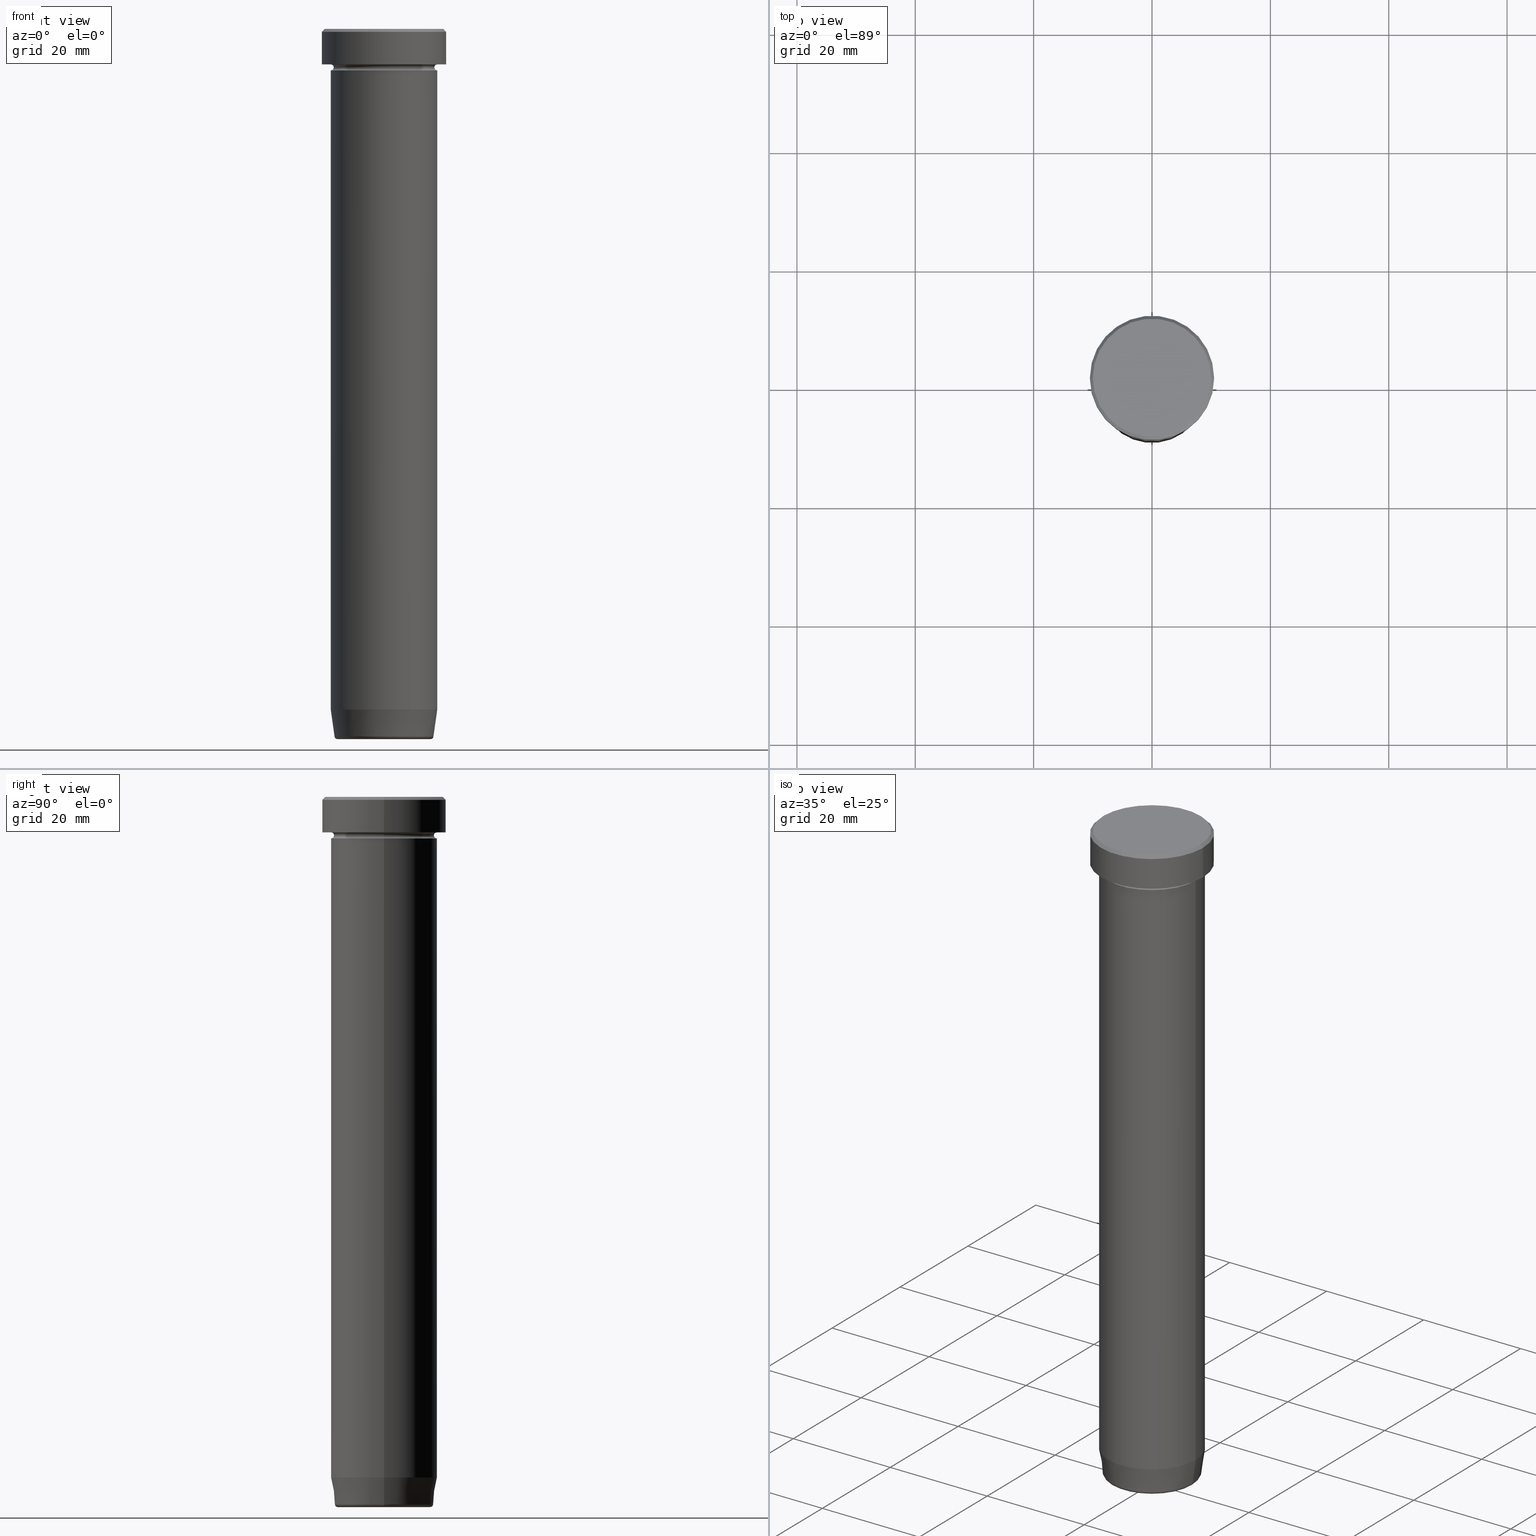
[diagram: canonical four-view strip — front | top / right | iso, engineering-drawing reading convention]
A machine part, canonical four-view strip (front | top / right | iso — engineering-drawing reading convention). The complete STEP part file that produces these views, byte-faithful:
ISO-10303-21;
HEADER;
FILE_DESCRIPTION (( 'STEP AP203' ),
    '1' );
FILE_NAME ('03d7.STEP',
    '2024-01-02T19:33:38',
    ( '' ),
    ( '' ),
    'SwSTEP 2.0',
    'SolidWorks 2019',
    '' );
FILE_SCHEMA (( 'CONFIG_CONTROL_DESIGN' ));
ENDSEC;

DATA;
#1 = VERTEX_POINT ( 'NONE', #71 ) ;
#2 = DIRECTION ( 'NONE',  ( 1.000000000000000000, 0.000000000000000000, 0.000000000000000000 ) ) ;
#3 = ORIENTED_EDGE ( 'NONE', *, *, #248, .T. ) ;
#4 = PLANE ( 'NONE',  #290 ) ;
#5 = EDGE_CURVE ( 'NONE', #406, #433, #534, .T. ) ;
#6 = ORIENTED_EDGE ( 'NONE', *, *, #166, .F. ) ;
#7 = EDGE_CURVE ( 'NONE', #471, #170, #351, .T. ) ;
#8 = CARTESIAN_POINT ( 'NONE',  ( 0.000000000000000000, 0.000000000000000000, -6.000000000000000000 ) ) ;
#9 = ORIENTED_EDGE ( 'NONE', *, *, #341, .F. ) ;
#10 = DIRECTION ( 'NONE',  ( -0.000000000000000000, -0.000000000000000000, 1.000000000000000000 ) ) ;
#11 = ORIENTED_EDGE ( 'NONE', *, *, #382, .T. ) ;
#12 = PRODUCT_DEFINITION ( 'NEZN�M�', '', #520, #102 ) ;
#13 = CARTESIAN_POINT ( 'NONE',  ( 8.357786491950712104, 0.000000000000000000, -119.5695865504800253 ) ) ;
#14 = VECTOR ( 'NONE', #261, 1000.000000000000000 ) ;
#15 = SECURITY_CLASSIFICATION ( '', '', #133 ) ;
#16 = DIRECTION ( 'NONE',  ( -0.000000000000000000, -0.000000000000000000, 1.000000000000000000 ) ) ;
#17 = EDGE_LOOP ( 'NONE', ( #6, #9, #507, #174 ) ) ;
#18 = ADVANCED_FACE ( 'NONE', ( #535 ), #577, .F. ) ;
#19 = CARTESIAN_POINT ( 'NONE',  ( 0.000000000000000000, 0.000000000000000000, 0.000000000000000000 ) ) ;
#20 = DIRECTION ( 'NONE',  ( 1.000000000000000000, 0.000000000000000000, 0.000000000000000000 ) ) ;
#21 = ORIENTED_EDGE ( 'NONE', *, *, #569, .T. ) ;
#22 = CIRCLE ( 'NONE', #72, 9.000000000000000000 ) ;
#23 = DIRECTION ( 'NONE',  ( -0.000000000000000000, -0.000000000000000000, 1.000000000000000000 ) ) ;
#24 = CARTESIAN_POINT ( 'NONE',  ( 0.000000000000000000, 4.898587196589411448E-15, -120.0000000000000000 ) ) ;
#25 = CONICAL_SURFACE ( 'NONE', #443, 8.297295826488038983, 0.1396263401595468356 ) ;
#26 = VECTOR ( 'NONE', #388, 1000.000000000000000 ) ;
#27 = FACE_OUTER_BOUND ( 'NONE', #346, .T. ) ;
#28 = FACE_OUTER_BOUND ( 'NONE', #241, .T. ) ;
#29 = ORIENTED_EDGE ( 'NONE', *, *, #62, .T. ) ;
#30 = EDGE_LOOP ( 'NONE', ( #281, #197, #379, #466 ) ) ;
#31 = DIRECTION ( 'NONE',  ( 0.000000000000000000, 0.000000000000000000, -1.000000000000000000 ) ) ;
#32 = CIRCLE ( 'NONE', #424, 10.50000000000000000 ) ;
#33 = DIRECTION ( 'NONE',  ( -1.000000000000000000, 0.000000000000000000, -0.000000000000000000 ) ) ;
#34 = ORIENTED_EDGE ( 'NONE', *, *, #296, .T. ) ;
#35 = PERSON_AND_ORGANIZATION ( #115, #362 ) ;
#36 = AXIS2_PLACEMENT_3D ( 'NONE', #506, #418, #189 ) ;
#37 = LINE ( 'NONE', #518, #575 ) ;
#38 = COORDINATED_UNIVERSAL_TIME_OFFSET ( 1, 0, .AHEAD. ) ;
#39 = EDGE_CURVE ( 'NONE', #170, #570, #22, .T. ) ;
#40 = CARTESIAN_POINT ( 'NONE',  ( 7.862652457579924814, 0.000000000000000000, -120.0000000000000000 ) ) ;
#41 = MECHANICAL_CONTEXT ( 'NONE', #204, 'mechanical' ) ;
#42 = CARTESIAN_POINT ( 'NONE',  ( 10.00000000000000178, 1.224646799147353454E-15, 0.000000000000000000 ) ) ;
#43 = AXIS2_PLACEMENT_3D ( 'NONE', #24, #306, #119 ) ;
#44 = ADVANCED_FACE ( 'NONE', ( #27 ), #212, .F. ) ;
#45 = SHAPE_DEFINITION_REPRESENTATION ( #514, #163 ) ;
#46 = DIRECTION ( 'NONE',  ( 0.000000000000000000, -0.000000000000000000, 1.000000000000000000 ) ) ;
#47 = VECTOR ( 'NONE', #232, 1000.000000000000000 ) ;
#48 = ORIENTED_EDGE ( 'NONE', *, *, #59, .T. ) ;
#49 = CIRCLE ( 'NONE', #194, 0.5000000000000004441 ) ;
#50 = AXIS2_PLACEMENT_3D ( 'NONE', #494, #73, #311 ) ;
#51 = APPLICATION_PROTOCOL_DEFINITION ( 'international standard', 'config_control_design', 1994, #583 ) ;
#52 = CARTESIAN_POINT ( 'NONE',  ( 0.000000000000000000, 0.000000000000000000, -6.000000000000000000 ) ) ;
#53 = EDGE_LOOP ( 'NONE', ( #553, #3, #571, #244 ) ) ;
#54 = EDGE_CURVE ( 'NONE', #391, #493, #271, .T. ) ;
#55 = DIRECTION ( 'NONE',  ( -0.1391731009600659097, 1.704378926181561528E-17, 0.9902680687415702510 ) ) ;
#56 = EDGE_CURVE ( 'NONE', #336, #117, #84, .T. ) ;
#57 = DIRECTION ( 'NONE',  ( 1.000000000000000000, 0.000000000000000000, 0.000000000000000000 ) ) ;
#58 = CIRCLE ( 'NONE', #36, 9.000000000000000000 ) ;
#59 = EDGE_CURVE ( 'NONE', #516, #179, #65, .T. ) ;
#60 = DIRECTION ( 'NONE',  ( 1.000000000000000000, 0.000000000000000000, 0.000000000000000000 ) ) ;
#61 = VERTEX_POINT ( 'NONE', #489 ) ;
#62 = EDGE_CURVE ( 'NONE', #61, #127, #32, .T. ) ;
#63 = DIRECTION ( 'NONE',  ( 1.000000000000000000, 0.000000000000000000, 0.000000000000000000 ) ) ;
#64 = ORIENTED_EDGE ( 'NONE', *, *, #378, .T. ) ;
#65 = CIRCLE ( 'NONE', #405, 7.862652457579924814 ) ;
#66 = CARTESIAN_POINT ( 'NONE',  ( -10.00000000000000178, 0.000000000000000000, 0.000000000000000000 ) ) ;
#67 = TOROIDAL_SURFACE ( 'NONE', #229, 9.000000000000000000, 0.5000000000000000000 ) ;
#68 = ORIENTED_EDGE ( 'NONE', *, *, #451, .F. ) ;
#69 = DIRECTION ( 'NONE',  ( -0.000000000000000000, -0.000000000000000000, 1.000000000000000000 ) ) ;
#70 =( LENGTH_UNIT ( ) NAMED_UNIT ( * ) SI_UNIT ( .MILLI., .METRE. ) );
#71 = CARTESIAN_POINT ( 'NONE',  ( -9.000000000000000000, 1.102182119232617714E-15, -114.9999999999999858 ) ) ;
#72 = AXIS2_PLACEMENT_3D ( 'NONE', #210, #491, #20 ) ;
#73 = DIRECTION ( 'NONE',  ( -0.000000000000000000, -0.000000000000000000, 1.000000000000000000 ) ) ;
#74 = DIRECTION ( 'NONE',  ( 1.224646799147353207E-16, 1.000000000000000000, 0.000000000000000000 ) ) ;
#75 = AXIS2_PLACEMENT_3D ( 'NONE', #178, #364, #542 ) ;
#76 = CYLINDRICAL_SURFACE ( 'NONE', #176, 9.000000000000000000 ) ;
#77 = APPROVAL_PERSON_ORGANIZATION ( #459, #258, #594 ) ;
#78 = CARTESIAN_POINT ( 'NONE',  ( 10.00000000000000178, 1.255262969126037241E-15, 0.000000000000000000 ) ) ;
#79 = ORIENTED_EDGE ( 'NONE', *, *, #385, .F. ) ;
#80 = CYLINDRICAL_SURFACE ( 'NONE', #372, 10.50000000000000000 ) ;
#81 = DIRECTION ( 'NONE',  ( 1.000000000000000000, 0.000000000000000000, 0.000000000000000000 ) ) ;
#82 = EDGE_CURVE ( 'NONE', #259, #1, #158, .T. ) ;
#83 = ORIENTED_EDGE ( 'NONE', *, *, #569, .F. ) ;
#84 = CIRCLE ( 'NONE', #330, 9.000000000000000000 ) ;
#85 = PLANE ( 'NONE',  #427 ) ;
#86 = APPROVAL_DATE_TIME ( #182, #209 ) ;
#87 = AXIS2_PLACEMENT_3D ( 'NONE', #508, #267, #503 ) ;
#88 = CARTESIAN_POINT ( 'NONE',  ( 0.000000000000000000, 9.000000000000000000, -22.00000000000000000 ) ) ;
#89 = AXIS2_PLACEMENT_3D ( 'NONE', #581, #528, #120 ) ;
#90 = COORDINATED_UNIVERSAL_TIME_OFFSET ( 1, 0, .AHEAD. ) ;
#91 = DIRECTION ( 'NONE',  ( 1.000000000000000000, 0.000000000000000000, 0.000000000000000000 ) ) ;
#92 = PERSON_AND_ORGANIZATION ( #115, #362 ) ;
#93 = DIRECTION ( 'NONE',  ( 1.000000000000000000, 0.000000000000000000, 0.000000000000000000 ) ) ;
#94 = CLOSED_SHELL ( 'NONE', ( #441, #588, #580, #585, #167, #274, #285, #533, #461, #421, #147, #106, #116 ) ) ;
#95 = VERTEX_POINT ( 'NONE', #78 ) ;
#96 = APPLICATION_PROTOCOL_DEFINITION ( 'international standard', 'config_control_design', 1994, #204 ) ;
#97 = AXIS2_PLACEMENT_3D ( 'NONE', #88, #497, #224 ) ;
#98 = VERTEX_POINT ( 'NONE', #407 ) ;
#99 = LOCAL_TIME ( 20, 33, 38.00000000000000000, #266 ) ;
#100 = EDGE_CURVE ( 'NONE', #95, #344, #454, .T. ) ;
#101 = CARTESIAN_POINT ( 'NONE',  ( 0.000000000000000000, 0.000000000000000000, 0.000000000000000000 ) ) ;
#102 = DESIGN_CONTEXT ( 'detailed design', #583, 'design' ) ;
#103 = ORIENTED_EDGE ( 'NONE', *, *, #264, .T. ) ;
#104 = CARTESIAN_POINT ( 'NONE',  ( 0.000000000000000000, 0.000000000000000000, -22.00000000000000000 ) ) ;
#105 = ORIENTED_EDGE ( 'NONE', *, *, #248, .F. ) ;
#106 = ADVANCED_FACE ( 'NONE', ( #394 ), #151, .F. ) ;
#107 = CARTESIAN_POINT ( 'NONE',  ( 9.000000000000000000, 0.000000000000000000, -6.500000000000000888 ) ) ;
#108 = TOROIDAL_SURFACE ( 'NONE', #380, 7.862652457579924814, 0.5000000000000000000 ) ;
#109 = CARTESIAN_POINT ( 'NONE',  ( 0.000000000000000000, 10.50000000000000000, -6.000000000000000000 ) ) ;
#110 = EDGE_LOOP ( 'NONE', ( #522, #294, #150, #469 ) ) ;
#111 = CARTESIAN_POINT ( 'NONE',  ( 8.297295826488038983, 0.000000000000000000, -120.0000000000000000 ) ) ;
#112 = VERTEX_POINT ( 'NONE', #495 ) ;
#113 = FACE_OUTER_BOUND ( 'NONE', #478, .T. ) ;
#114 = ORIENTED_EDGE ( 'NONE', *, *, #554, .T. ) ;
#115 = PERSON ( 'NEUR�EN�', 'NEUR�EN�', 'NEUR�EN�', ('NEUR�EN�'), ('NEUR�EN�'), ('NEUR�EN�') ) ;
#116 = ADVANCED_FACE ( 'NONE', ( #173 ), #492, .T. ) ;
#117 = VERTEX_POINT ( 'NONE', #450 ) ;
#118 = CARTESIAN_POINT ( 'NONE',  ( 10.50000000000000000, 0.000000000000000000, -0.5000000000000023315 ) ) ;
#119 = DIRECTION ( 'NONE',  ( 1.000000000000000000, 0.000000000000000000, 0.000000000000000000 ) ) ;
#120 = DIRECTION ( 'NONE',  ( 1.000000000000000000, 0.000000000000000000, 0.000000000000000000 ) ) ;
#121 = DIRECTION ( 'NONE',  ( -0.000000000000000000, -0.000000000000000000, 1.000000000000000000 ) ) ;
#122 = DIRECTION ( 'NONE',  ( -0.000000000000000000, -0.000000000000000000, 1.000000000000000000 ) ) ;
#123 = CC_DESIGN_APPROVAL ( #258, ( #15 ) ) ;
#124 = FACE_OUTER_BOUND ( 'NONE', #317, .T. ) ;
#125 = AXIS2_PLACEMENT_3D ( 'NONE', #417, #590, #545 ) ;
#126 = DIRECTION ( 'NONE',  ( 0.000000000000000000, 0.000000000000000000, -1.000000000000000000 ) ) ;
#127 = VERTEX_POINT ( 'NONE', #586 ) ;
#128 = APPROVAL_ROLE ( '' ) ;
#129 = DIRECTION ( 'NONE',  ( -1.000000000000000000, 0.000000000000000000, 0.000000000000000000 ) ) ;
#130 = EDGE_LOOP ( 'NONE', ( #363, #452, #190, #142 ) ) ;
#131 = APPROVAL_ROLE ( '' ) ;
#132 = CARTESIAN_POINT ( 'NONE',  ( 9.000000000000000000, 0.000000000000000000, 0.000000000000000000 ) ) ;
#133 = SECURITY_CLASSIFICATION_LEVEL ( 'unclassified' ) ;
#134 = CARTESIAN_POINT ( 'NONE',  ( -7.862652457579924814, 9.628972164983326593E-16, -119.5000000000000000 ) ) ;
#135 = AXIS2_PLACEMENT_3D ( 'NONE', #356, #488, #214 ) ;
#136 = EDGE_CURVE ( 'NONE', #112, #587, #237, .T. ) ;
#137 = DIRECTION ( 'NONE',  ( -0.000000000000000000, -0.000000000000000000, 1.000000000000000000 ) ) ;
#138 = DIRECTION ( 'NONE',  ( 0.000000000000000000, 0.000000000000000000, -1.000000000000000000 ) ) ;
#139 = ORIENTED_EDGE ( 'NONE', *, *, #39, .F. ) ;
#140 = LINE ( 'NONE', #144, #288 ) ;
#141 = CONICAL_SURFACE ( 'NONE', #200, 8.297295826488038983, 0.1396263401595468356 ) ;
#142 = ORIENTED_EDGE ( 'NONE', *, *, #262, .F. ) ;
#143 = VECTOR ( 'NONE', #55, 1000.000000000000000 ) ;
#144 = CARTESIAN_POINT ( 'NONE',  ( 9.000000000000000000, 0.000000000000000000, 0.000000000000000000 ) ) ;
#145 = CARTESIAN_POINT ( 'NONE',  ( -8.499999999999998224, 1.071565949253933927E-15, -6.500000000000000888 ) ) ;
#146 = VERTEX_POINT ( 'NONE', #574 ) ;
#147 = ADVANCED_FACE ( 'NONE', ( #160 ), #67, .F. ) ;
#148 = FACE_OUTER_BOUND ( 'NONE', #410, .T. ) ;
#149 = MANIFOLD_SOLID_BREP ( 'Zaoblit4', #368 ) ;
#150 = ORIENTED_EDGE ( 'NONE', *, *, #82, .F. ) ;
#151 = TOROIDAL_SURFACE ( 'NONE', #161, 9.000000000000000000, 0.5000000000000000000 ) ;
#152 = LOCAL_TIME ( 20, 33, 38.00000000000000000, #90 ) ;
#153 = CARTESIAN_POINT ( 'NONE',  ( 0.000000000000000000, 0.000000000000000000, 0.000000000000000000 ) ) ;
#154 = ORIENTED_EDGE ( 'NONE', *, *, #39, .T. ) ;
#155 = CC_DESIGN_PERSON_AND_ORGANIZATION_ASSIGNMENT ( #498, #369, ( #520 ) ) ;
#156 = FACE_OUTER_BOUND ( 'NONE', #389, .T. ) ;
#157 = ORIENTED_EDGE ( 'NONE', *, *, #226, .T. ) ;
#158 = CIRCLE ( 'NONE', #318, 9.000000000000000000 ) ;
#159 = CYLINDRICAL_SURFACE ( 'NONE', #310, 9.000000000000000000 ) ;
#160 = FACE_OUTER_BOUND ( 'NONE', #30, .T. ) ;
#161 = AXIS2_PLACEMENT_3D ( 'NONE', #247, #360, #538 ) ;
#162 = CIRCLE ( 'NONE', #501, 8.499999999999998224 ) ;
#163 = ADVANCED_BREP_SHAPE_REPRESENTATION ( '03d7', ( #565, #149, #125 ), #238 ) ;
#164 = DIRECTION ( 'NONE',  ( 1.000000000000000000, 0.000000000000000000, 0.000000000000000000 ) ) ;
#165 = DIRECTION ( 'NONE',  ( -0.000000000000000000, -0.000000000000000000, 1.000000000000000000 ) ) ;
#166 = EDGE_CURVE ( 'NONE', #95, #587, #456, .T. ) ;
#167 = ADVANCED_FACE ( 'NONE', ( #546 ), #373, .T. ) ;
#168 = DIRECTION ( 'NONE',  ( 1.000000000000000000, 0.000000000000000000, 0.000000000000000000 ) ) ;
#169 = CARTESIAN_POINT ( 'NONE',  ( 0.000000000000000000, 0.000000000000000000, -120.0000000000000000 ) ) ;
#170 = VERTEX_POINT ( 'NONE', #320 ) ;
#171 = CARTESIAN_POINT ( 'NONE',  ( 0.000000000000000000, 0.000000000000000000, 0.000000000000000000 ) ) ;
#172 = EDGE_CURVE ( 'NONE', #98, #146, #300, .T. ) ;
#173 = FACE_OUTER_BOUND ( 'NONE', #17, .T. ) ;
#174 = ORIENTED_EDGE ( 'NONE', *, *, #573, .F. ) ;
#175 = CIRCLE ( 'NONE', #185, 10.00000000000000178 ) ;
#176 = AXIS2_PLACEMENT_3D ( 'NONE', #171, #525, #255 ) ;
#177 = CALENDAR_DATE ( 2024, 2, 1 ) ;
#178 = CARTESIAN_POINT ( 'NONE',  ( 0.000000000000000000, 0.000000000000000000, -0.5000000000000023315 ) ) ;
#179 = VERTEX_POINT ( 'NONE', #40 ) ;
#180 = CALENDAR_DATE ( 2024, 2, 1 ) ;
#181 = DIRECTION ( 'NONE',  ( -1.000000000000000000, 0.000000000000000000, 0.000000000000000000 ) ) ;
#182 = DATE_AND_TIME ( #464, #455 ) ;
#183 = DIRECTION ( 'NONE',  ( -0.000000000000000000, -0.000000000000000000, 1.000000000000000000 ) ) ;
#184 = APPROVAL_DATE_TIME ( #268, #258 ) ;
#185 = AXIS2_PLACEMENT_3D ( 'NONE', #153, #384, #57 ) ;
#186 = DIRECTION ( 'NONE',  ( 1.000000000000000000, 0.000000000000000000, 0.000000000000000000 ) ) ;
#187 = LOCAL_TIME ( 20, 33, 38.00000000000000000, #319 ) ;
#188 = CALENDAR_DATE ( 2024, 2, 1 ) ;
#189 = DIRECTION ( 'NONE',  ( -1.000000000000000000, 0.000000000000000000, 0.000000000000000000 ) ) ;
#190 = ORIENTED_EDGE ( 'NONE', *, *, #328, .T. ) ;
#191 = DIRECTION ( 'NONE',  ( 0.7071067811865450192, 8.659560562354902043E-17, -0.7071067811865500152 ) ) ;
#192 = ORIENTED_EDGE ( 'NONE', *, *, #437, .F. ) ;
#193 = CARTESIAN_POINT ( 'NONE',  ( -9.000000000000000000, 1.102182119232617714E-15, -22.00000000000000000 ) ) ;
#194 = AXIS2_PLACEMENT_3D ( 'NONE', #269, #460, #138 ) ;
#195 = APPROVAL_PERSON_ORGANIZATION ( #92, #209, #131 ) ;
#196 = DIRECTION ( 'NONE',  ( -0.000000000000000000, -0.000000000000000000, 1.000000000000000000 ) ) ;
#197 = ORIENTED_EDGE ( 'NONE', *, *, #517, .F. ) ;
#198 = CARTESIAN_POINT ( 'NONE',  ( 9.000000000000000000, 0.000000000000000000, -22.00000000000000000 ) ) ;
#199 = FACE_OUTER_BOUND ( 'NONE', #205, .T. ) ;
#200 = AXIS2_PLACEMENT_3D ( 'NONE', #326, #591, #91 ) ;
#201 = AXIS2_PLACEMENT_3D ( 'NONE', #483, #208, #349 ) ;
#202 = CC_DESIGN_DATE_AND_TIME_ASSIGNMENT ( #457, #223, ( #15 ) ) ;
#203 = DIRECTION ( 'NONE',  ( 0.000000000000000000, 0.000000000000000000, -1.000000000000000000 ) ) ;
#204 = APPLICATION_CONTEXT ( 'configuration controlled 3d designs of mechanical parts and assemblies' ) ;
#205 = EDGE_LOOP ( 'NONE', ( #348, #556 ) ) ;
#206 = CARTESIAN_POINT ( 'NONE',  ( 0.000000000000000000, 0.000000000000000000, 0.000000000000000000 ) ) ;
#207 = CARTESIAN_POINT ( 'NONE',  ( 0.000000000000000000, 0.000000000000000000, -6.000000000000000000 ) ) ;
#208 = DIRECTION ( 'NONE',  ( 0.000000000000000000, 0.000000000000000000, -1.000000000000000000 ) ) ;
#209 = APPROVAL ( #275, 'NEUR�EN�' ) ;
#210 = CARTESIAN_POINT ( 'NONE',  ( 0.000000000000000000, 0.000000000000000000, -7.000000000000000000 ) ) ;
#211 = TOROIDAL_SURFACE ( 'NONE', #50, 9.000000000000000000, 0.5000000000000000000 ) ;
#212 = PLANE ( 'NONE',  #242 ) ;
#213 = VERTEX_POINT ( 'NONE', #370 ) ;
#214 = DIRECTION ( 'NONE',  ( 0.000000000000000000, 0.000000000000000000, -1.000000000000000000 ) ) ;
#215 = DIRECTION ( 'NONE',  ( -1.000000000000000000, 1.224646799147353454E-16, 0.000000000000000000 ) ) ;
#216 = EDGE_CURVE ( 'NONE', #433, #406, #482, .T. ) ;
#217 = EDGE_LOOP ( 'NONE', ( #29, #350, #219, #332 ) ) ;
#218 = DIRECTION ( 'NONE',  ( -0.000000000000000000, -0.000000000000000000, 1.000000000000000000 ) ) ;
#219 = ORIENTED_EDGE ( 'NONE', *, *, #136, .T. ) ;
#220 = AXIS2_PLACEMENT_3D ( 'NONE', #298, #23, #352 ) ;
#221 = PERSON_AND_ORGANIZATION_ROLE ( 'creator' ) ;
#222 = PLANE ( 'NONE',  #97 ) ;
#223 = DATE_TIME_ROLE ( 'classification_date' ) ;
#224 = DIRECTION ( 'NONE',  ( -1.000000000000000000, 0.000000000000000000, -0.000000000000000000 ) ) ;
#225 = CARTESIAN_POINT ( 'NONE',  ( 9.000000000000000000, 0.000000000000000000, -114.9999999999999858 ) ) ;
#226 = EDGE_CURVE ( 'NONE', #179, #433, #49, .T. ) ;
#227 = EDGE_CURVE ( 'NONE', #391, #570, #367, .T. ) ;
#228 = PERSON_AND_ORGANIZATION_ROLE ( 'creator' ) ;
#229 = AXIS2_PLACEMENT_3D ( 'NONE', #550, #377, #458 ) ;
#230 = LINE ( 'NONE', #499, #14 ) ;
#231 = ORIENTED_EDGE ( 'NONE', *, *, #385, .T. ) ;
#232 = DIRECTION ( 'NONE',  ( -0.000000000000000000, -0.000000000000000000, 1.000000000000000000 ) ) ;
#233 = ORIENTED_EDGE ( 'NONE', *, *, #227, .T. ) ;
#234 = FACE_BOUND ( 'NONE', #524, .T. ) ;
#235 = EDGE_LOOP ( 'NONE', ( #540, #11, #474, #544 ) ) ;
#236 = CARTESIAN_POINT ( 'NONE',  ( -8.297295826488038983, 1.016125677548726948E-15, -120.0000000000000000 ) ) ;
#237 = CIRCLE ( 'NONE', #75, 10.50000000000000000 ) ;
#238 =( GEOMETRIC_REPRESENTATION_CONTEXT ( 3 ) GLOBAL_UNCERTAINTY_ASSIGNED_CONTEXT ( ( #335 ) ) GLOBAL_UNIT_ASSIGNED_CONTEXT ( ( #70, #439, #536 ) ) REPRESENTATION_CONTEXT ( 'NONE', 'WORKASPACE' ) );
#239 = LINE ( 'NONE', #111, #361 ) ;
#240 = DIRECTION ( 'NONE',  ( 1.000000000000000000, 0.000000000000000000, 0.000000000000000000 ) ) ;
#241 = EDGE_LOOP ( 'NONE', ( #21, #559, #68, #273 ) ) ;
#242 = AXIS2_PLACEMENT_3D ( 'NONE', #251, #397, #33 ) ;
#243 = DIRECTION ( 'NONE',  ( -0.000000000000000000, -0.000000000000000000, 1.000000000000000000 ) ) ;
#244 = ORIENTED_EDGE ( 'NONE', *, *, #226, .F. ) ;
#245 = ORIENTED_EDGE ( 'NONE', *, *, #451, .T. ) ;
#246 = FACE_OUTER_BOUND ( 'NONE', #235, .T. ) ;
#247 = CARTESIAN_POINT ( 'NONE',  ( 0.000000000000000000, 0.000000000000000000, -6.500000000000000888 ) ) ;
#248 = EDGE_CURVE ( 'NONE', #516, #406, #276, .T. ) ;
#249 = CARTESIAN_POINT ( 'NONE',  ( 9.000000000000000000, 0.000000000000000000, -7.000000000000000000 ) ) ;
#250 = ORIENTED_EDGE ( 'NONE', *, *, #296, .F. ) ;
#251 = CARTESIAN_POINT ( 'NONE',  ( 0.000000000000000000, 0.000000000000000000, -22.00000000000000000 ) ) ;
#252 = EDGE_CURVE ( 'NONE', #127, #112, #230, .T. ) ;
#253 = VECTOR ( 'NONE', #243, 1000.000000000000000 ) ;
#254 = CC_DESIGN_APPROVAL ( #209, ( #520 ) ) ;
#255 = DIRECTION ( 'NONE',  ( 1.000000000000000000, 0.000000000000000000, 0.000000000000000000 ) ) ;
#256 = DIRECTION ( 'NONE',  ( -0.000000000000000000, -0.000000000000000000, 1.000000000000000000 ) ) ;
#257 = DIRECTION ( 'NONE',  ( -1.000000000000000000, 0.000000000000000000, 0.000000000000000000 ) ) ;
#258 = APPROVAL ( #547, 'NEUR�EN�' ) ;
#259 = VERTEX_POINT ( 'NONE', #225 ) ;
#260 = PERSON_AND_ORGANIZATION_ROLE ( 'design_owner' ) ;
#261 = DIRECTION ( 'NONE',  ( -0.000000000000000000, -0.000000000000000000, 1.000000000000000000 ) ) ;
#262 = EDGE_CURVE ( 'NONE', #1, #259, #398, .T. ) ;
#263 = CIRCLE ( 'NONE', #408, 10.50000000000000000 ) ;
#264 = EDGE_CURVE ( 'NONE', #127, #61, #263, .T. ) ;
#265 = CC_DESIGN_APPROVAL ( #513, ( #12 ) ) ;
#266 = COORDINATED_UNIVERSAL_TIME_OFFSET ( 1, 0, .AHEAD. ) ;
#267 = DIRECTION ( 'NONE',  ( -0.000000000000000000, -0.000000000000000000, 1.000000000000000000 ) ) ;
#268 = DATE_AND_TIME ( #188, #152 ) ;
#269 = CARTESIAN_POINT ( 'NONE',  ( 7.862652457579924814, 0.000000000000000000, -119.5000000000000000 ) ) ;
#270 = COORDINATED_UNIVERSAL_TIME_OFFSET ( 1, 0, .AHEAD. ) ;
#271 = CIRCLE ( 'NONE', #295, 9.000000000000000000 ) ;
#272 = DIRECTION ( 'NONE',  ( -1.224646799147353207E-16, 1.000000000000000000, 0.000000000000000000 ) ) ;
#273 = ORIENTED_EDGE ( 'NONE', *, *, #554, .F. ) ;
#274 = ADVANCED_FACE ( 'NONE', ( #453 ), #222, .T. ) ;
#275 = APPROVAL_STATUS ( 'not_yet_approved' ) ;
#276 = CIRCLE ( 'NONE', #387, 0.5000000000000004441 ) ;
#277 = TOROIDAL_SURFACE ( 'NONE', #510, 9.000000000000000000, 0.5000000000000000000 ) ;
#278 = DIRECTION ( 'NONE',  ( -0.000000000000000000, -0.000000000000000000, 1.000000000000000000 ) ) ;
#279 = ORIENTED_EDGE ( 'NONE', *, *, #480, .F. ) ;
#280 = DIRECTION ( 'NONE',  ( 0.000000000000000000, 0.000000000000000000, -1.000000000000000000 ) ) ;
#281 = ORIENTED_EDGE ( 'NONE', *, *, #7, .F. ) ;
#282 = ADVANCED_FACE ( 'NONE', ( #414 ), #141, .T. ) ;
#283 = DIRECTION ( 'NONE',  ( -0.000000000000000000, -0.000000000000000000, 1.000000000000000000 ) ) ;
#284 = ORIENTED_EDGE ( 'NONE', *, *, #573, .T. ) ;
#285 = ADVANCED_FACE ( 'NONE', ( #415 ), #85, .T. ) ;
#286 = EDGE_CURVE ( 'NONE', #493, #391, #333, .T. ) ;
#287 = CARTESIAN_POINT ( 'NONE',  ( 0.000000000000000000, 0.000000000000000000, -120.0000000000000000 ) ) ;
#288 = VECTOR ( 'NONE', #283, 1000.000000000000000 ) ;
#289 = EDGE_LOOP ( 'NONE', ( #426, #402 ) ) ;
#290 = AXIS2_PLACEMENT_3D ( 'NONE', #109, #291, #558 ) ;
#291 = DIRECTION ( 'NONE',  ( 0.000000000000000000, 0.000000000000000000, -1.000000000000000000 ) ) ;
#292 = ORIENTED_EDGE ( 'NONE', *, *, #382, .F. ) ;
#293 = LINE ( 'NONE', #236, #143 ) ;
#294 = ORIENTED_EDGE ( 'NONE', *, *, #396, .T. ) ;
#295 = AXIS2_PLACEMENT_3D ( 'NONE', #579, #165, #400 ) ;
#296 = EDGE_CURVE ( 'NONE', #146, #213, #58, .T. ) ;
#297 = ORIENTED_EDGE ( 'NONE', *, *, #445, .T. ) ;
#298 = CARTESIAN_POINT ( 'NONE',  ( 0.000000000000000000, 0.000000000000000000, -6.500000000000000888 ) ) ;
#299 = EDGE_LOOP ( 'NONE', ( #563, #532, #114, #250 ) ) ;
#300 = CIRCLE ( 'NONE', #463, 0.5000000000000004441 ) ;
#301 = APPROVAL_PERSON_ORGANIZATION ( #374, #513, #128 ) ;
#302 = ADVANCED_FACE ( 'NONE', ( #375 ), #108, .T. ) ;
#303 = CARTESIAN_POINT ( 'NONE',  ( 0.000000000000000000, 0.000000000000000000, -7.000000000000000000 ) ) ;
#304 = DIRECTION ( 'NONE',  ( 0.000000000000000000, 0.000000000000000000, -1.000000000000000000 ) ) ;
#305 = FACE_OUTER_BOUND ( 'NONE', #358, .T. ) ;
#306 = DIRECTION ( 'NONE',  ( 0.000000000000000000, -0.000000000000000000, 1.000000000000000000 ) ) ;
#307 = DIRECTION ( 'NONE',  ( -0.000000000000000000, -0.000000000000000000, 1.000000000000000000 ) ) ;
#308 = DIRECTION ( 'NONE',  ( 1.000000000000000000, 0.000000000000000000, 0.000000000000000000 ) ) ;
#309 = VECTOR ( 'NONE', #191, 1000.000000000000000 ) ;
#310 = AXIS2_PLACEMENT_3D ( 'NONE', #446, #490, #168 ) ;
#311 = DIRECTION ( 'NONE',  ( 1.000000000000000000, 0.000000000000000000, 0.000000000000000000 ) ) ;
#312 = CC_DESIGN_PERSON_AND_ORGANIZATION_ASSIGNMENT ( #411, #551, ( #15 ) ) ;
#313 = CARTESIAN_POINT ( 'NONE',  ( 0.000000000000000000, 0.000000000000000000, 0.000000000000000000 ) ) ;
#314 = EDGE_LOOP ( 'NONE', ( #512, #419 ) ) ;
#315 = PERSON_AND_ORGANIZATION ( #115, #362 ) ;
#316 = DIRECTION ( 'NONE',  ( -0.000000000000000000, -0.000000000000000000, 1.000000000000000000 ) ) ;
#317 = EDGE_LOOP ( 'NONE', ( #431, #376, #79, #496 ) ) ;
#318 = AXIS2_PLACEMENT_3D ( 'NONE', #357, #122, #308 ) ;
#319 = COORDINATED_UNIVERSAL_TIME_OFFSET ( 1, 0, .AHEAD. ) ;
#320 = CARTESIAN_POINT ( 'NONE',  ( -9.000000000000000000, 1.102182119232617714E-15, -7.000000000000000000 ) ) ;
#321 = CC_DESIGN_DATE_AND_TIME_ASSIGNMENT ( #502, #413, ( #12 ) ) ;
#322 = AXIS2_PLACEMENT_3D ( 'NONE', #412, #183, #2 ) ;
#323 = AXIS2_PLACEMENT_3D ( 'NONE', #101, #16, #432 ) ;
#324 = APPROVAL_STATUS ( 'not_yet_approved' ) ;
#325 = EDGE_CURVE ( 'NONE', #1, #336, #37, .T. ) ;
#326 = CARTESIAN_POINT ( 'NONE',  ( 0.000000000000000000, 0.000000000000000000, -120.0000000000000000 ) ) ;
#327 = DIRECTION ( 'NONE',  ( 1.000000000000000000, 0.000000000000000000, 0.000000000000000000 ) ) ;
#328 = EDGE_CURVE ( 'NONE', #433, #259, #239, .T. ) ;
#329 = APPROVAL_DATE_TIME ( #598, #513 ) ;
#330 = AXIS2_PLACEMENT_3D ( 'NONE', #354, #121, #530 ) ;
#331 = DIRECTION ( 'NONE',  ( -1.000000000000000000, 1.224646799147353454E-16, 0.000000000000000000 ) ) ;
#332 = ORIENTED_EDGE ( 'NONE', *, *, #355, .F. ) ;
#333 = CIRCLE ( 'NONE', #371, 9.000000000000000000 ) ;
#334 = CARTESIAN_POINT ( 'NONE',  ( -8.357786491950712104, 1.062857883382530313E-15, -119.5695865504800253 ) ) ;
#335 = UNCERTAINTY_MEASURE_WITH_UNIT (LENGTH_MEASURE( 1.000000000000000082E-05 ), #70, 'distance_accuracy_value', 'NONE');
#336 = VERTEX_POINT ( 'NONE', #193 ) ;
#337 = DIRECTION ( 'NONE',  ( -1.000000000000000000, 0.000000000000000000, 0.000000000000000000 ) ) ;
#338 = ORIENTED_EDGE ( 'NONE', *, *, #7, .T. ) ;
#339 = DIRECTION ( 'NONE',  ( -0.000000000000000000, -0.000000000000000000, 1.000000000000000000 ) ) ;
#340 = AXIS2_PLACEMENT_3D ( 'NONE', #440, #74, #215 ) ;
#341 = EDGE_CURVE ( 'NONE', #344, #95, #175, .T. ) ;
#342 = DIRECTION ( 'NONE',  ( -0.000000000000000000, -0.000000000000000000, 1.000000000000000000 ) ) ;
#343 = AXIS2_PLACEMENT_3D ( 'NONE', #104, #10, #63 ) ;
#344 = VERTEX_POINT ( 'NONE', #66 ) ;
#345 = CIRCLE ( 'NONE', #567, 9.000000000000000000 ) ;
#346 = EDGE_LOOP ( 'NONE', ( #231, #566 ) ) ;
#347 = FACE_OUTER_BOUND ( 'NONE', #110, .T. ) ;
#348 = ORIENTED_EDGE ( 'NONE', *, *, #62, .F. ) ;
#349 = DIRECTION ( 'NONE',  ( 1.000000000000000000, 0.000000000000000000, 0.000000000000000000 ) ) ;
#350 = ORIENTED_EDGE ( 'NONE', *, *, #252, .T. ) ;
#351 = CIRCLE ( 'NONE', #340, 0.5000000000000004441 ) ;
#352 = DIRECTION ( 'NONE',  ( 1.000000000000000000, 0.000000000000000000, 0.000000000000000000 ) ) ;
#353 = CIRCLE ( 'NONE', #135, 0.5000000000000004441 ) ;
#354 = CARTESIAN_POINT ( 'NONE',  ( 0.000000000000000000, 0.000000000000000000, -22.00000000000000000 ) ) ;
#355 = EDGE_CURVE ( 'NONE', #61, #587, #468, .T. ) ;
#356 = CARTESIAN_POINT ( 'NONE',  ( -9.000000000000000000, 0.000000000000000000, -6.500000000000000888 ) ) ;
#357 = CARTESIAN_POINT ( 'NONE',  ( 0.000000000000000000, 0.000000000000000000, -114.9999999999999858 ) ) ;
#358 = EDGE_LOOP ( 'NONE', ( #83, #338, #154, #192 ) ) ;
#359 = ADVANCED_FACE ( 'NONE', ( #347 ), #25, .T. ) ;
#360 = DIRECTION ( 'NONE',  ( 0.000000000000000000, 0.000000000000000000, -1.000000000000000000 ) ) ;
#361 = VECTOR ( 'NONE', #390, 1000.000000000000000 ) ;
#362 = ORGANIZATION ( 'NEUR�EN�', 'NEUR�EN�', '' ) ;
#363 = ORIENTED_EDGE ( 'NONE', *, *, #396, .F. ) ;
#364 = DIRECTION ( 'NONE',  ( 0.000000000000000000, 0.000000000000000000, -1.000000000000000000 ) ) ;
#365 = ORIENTED_EDGE ( 'NONE', *, *, #56, .F. ) ;
#366 = CALENDAR_DATE ( 2024, 2, 1 ) ;
#367 = LINE ( 'NONE', #132, #47 ) ;
#368 = CLOSED_SHELL ( 'NONE', ( #302, #359, #543, #44, #564, #282, #18, #541 ) ) ;
#369 = PERSON_AND_ORGANIZATION_ROLE ( 'design_supplier' ) ;
#370 = CARTESIAN_POINT ( 'NONE',  ( -9.000000000000000000, 0.000000000000000000, -6.000000000000000000 ) ) ;
#371 = AXIS2_PLACEMENT_3D ( 'NONE', #599, #137, #327 ) ;
#372 = AXIS2_PLACEMENT_3D ( 'NONE', #19, #69, #436 ) ;
#373 = CYLINDRICAL_SURFACE ( 'NONE', #322, 10.50000000000000000 ) ;
#374 = PERSON_AND_ORGANIZATION ( #115, #362 ) ;
#375 = FACE_OUTER_BOUND ( 'NONE', #53, .T. ) ;
#376 = ORIENTED_EDGE ( 'NONE', *, *, #325, .T. ) ;
#377 = DIRECTION ( 'NONE',  ( -0.000000000000000000, -0.000000000000000000, 1.000000000000000000 ) ) ;
#378 = EDGE_CURVE ( 'NONE', #259, #117, #140, .T. ) ;
#379 = ORIENTED_EDGE ( 'NONE', *, *, #437, .T. ) ;
#380 = AXIS2_PLACEMENT_3D ( 'NONE', #552, #278, #240 ) ;
#381 = CONICAL_SURFACE ( 'NONE', #409, 10.00000000000000178, 0.7853981633974447263 ) ;
#382 = EDGE_CURVE ( 'NONE', #493, #170, #473, .T. ) ;
#383 = CARTESIAN_POINT ( 'NONE',  ( 10.50000000000000000, 0.000000000000000000, 0.000000000000000000 ) ) ;
#384 = DIRECTION ( 'NONE',  ( -0.000000000000000000, -0.000000000000000000, 1.000000000000000000 ) ) ;
#385 = EDGE_CURVE ( 'NONE', #117, #336, #596, .T. ) ;
#386 = DIRECTION ( 'NONE',  ( -1.000000000000000000, 0.000000000000000000, 0.000000000000000000 ) ) ;
#387 = AXIS2_PLACEMENT_3D ( 'NONE', #134, #555, #331 ) ;
#388 = DIRECTION ( 'NONE',  ( -0.7071067811865450192, 0.000000000000000000, -0.7071067811865500152 ) ) ;
#389 = EDGE_LOOP ( 'NONE', ( #476, #584, #64, #365 ) ) ;
#390 = DIRECTION ( 'NONE',  ( 0.1391731009600659097, 0.000000000000000000, 0.9902680687415702510 ) ) ;
#391 = VERTEX_POINT ( 'NONE', #198 ) ;
#392 = ORIENTED_EDGE ( 'NONE', *, *, #286, .T. ) ;
#393 = DIRECTION ( 'NONE',  ( -0.000000000000000000, -0.000000000000000000, 1.000000000000000000 ) ) ;
#394 = FACE_OUTER_BOUND ( 'NONE', #299, .T. ) ;
#395 = DIRECTION ( 'NONE',  ( -0.000000000000000000, -0.000000000000000000, 1.000000000000000000 ) ) ;
#396 = EDGE_CURVE ( 'NONE', #406, #1, #293, .T. ) ;
#397 = DIRECTION ( 'NONE',  ( 0.000000000000000000, 0.000000000000000000, -1.000000000000000000 ) ) ;
#398 = CIRCLE ( 'NONE', #87, 9.000000000000000000 ) ;
#399 = CIRCLE ( 'NONE', #484, 7.862652457579924814 ) ;
#400 = DIRECTION ( 'NONE',  ( 1.000000000000000000, 0.000000000000000000, 0.000000000000000000 ) ) ;
#401 = PRODUCT_RELATED_PRODUCT_CATEGORY ( 'detail', '', ( #467 ) ) ;
#402 = ORIENTED_EDGE ( 'NONE', *, *, #286, .F. ) ;
#403 = CYLINDRICAL_SURFACE ( 'NONE', #597, 9.000000000000000000 ) ;
#404 = DIRECTION ( 'NONE',  ( -0.000000000000000000, -0.000000000000000000, 1.000000000000000000 ) ) ;
#405 = AXIS2_PLACEMENT_3D ( 'NONE', #169, #126, #447 ) ;
#406 = VERTEX_POINT ( 'NONE', #334 ) ;
#407 = CARTESIAN_POINT ( 'NONE',  ( 8.499999999999998224, 0.000000000000000000, -6.500000000000000888 ) ) ;
#408 = AXIS2_PLACEMENT_3D ( 'NONE', #52, #316, #186 ) ;
#409 = AXIS2_PLACEMENT_3D ( 'NONE', #511, #280, #386 ) ;
#410 = EDGE_LOOP ( 'NONE', ( #292, #392, #233, #139 ) ) ;
#411 = PERSON_AND_ORGANIZATION ( #115, #362 ) ;
#412 = CARTESIAN_POINT ( 'NONE',  ( 0.000000000000000000, 0.000000000000000000, 0.000000000000000000 ) ) ;
#413 = DATE_TIME_ROLE ( 'creation_date' ) ;
#414 = FACE_OUTER_BOUND ( 'NONE', #130, .T. ) ;
#415 = FACE_OUTER_BOUND ( 'NONE', #314, .T. ) ;
#416 = AXIS2_PLACEMENT_3D ( 'NONE', #303, #395, #486 ) ;
#417 = CARTESIAN_POINT ( 'NONE',  ( 0.000000000000000000, 0.000000000000000000, 0.000000000000000000 ) ) ;
#418 = DIRECTION ( 'NONE',  ( -0.000000000000000000, -0.000000000000000000, 1.000000000000000000 ) ) ;
#419 = ORIENTED_EDGE ( 'NONE', *, *, #100, .T. ) ;
#420 = CC_DESIGN_PERSON_AND_ORGANIZATION_ASSIGNMENT ( #35, #228, ( #12 ) ) ;
#421 = ADVANCED_FACE ( 'NONE', ( #148 ), #434, .T. ) ;
#422 = DIRECTION ( 'NONE',  ( -1.000000000000000000, -1.224646799147353454E-16, 0.000000000000000000 ) ) ;
#423 = ORIENTED_EDGE ( 'NONE', *, *, #100, .F. ) ;
#424 = AXIS2_PLACEMENT_3D ( 'NONE', #207, #404, #81 ) ;
#425 = CARTESIAN_POINT ( 'NONE',  ( -9.000000000000000000, 1.102182119232617714E-15, 0.000000000000000000 ) ) ;
#426 = ORIENTED_EDGE ( 'NONE', *, *, #54, .F. ) ;
#427 = AXIS2_PLACEMENT_3D ( 'NONE', #595, #46, #93 ) ;
#428 = CIRCLE ( 'NONE', #201, 10.50000000000000000 ) ;
#429 = FACE_OUTER_BOUND ( 'NONE', #448, .T. ) ;
#430 = DIRECTION ( 'NONE',  ( 0.000000000000000000, -1.000000000000000000, 0.000000000000000000 ) ) ;
#431 = ORIENTED_EDGE ( 'NONE', *, *, #82, .T. ) ;
#432 = DIRECTION ( 'NONE',  ( 1.000000000000000000, 0.000000000000000000, 0.000000000000000000 ) ) ;
#433 = VERTEX_POINT ( 'NONE', #13 ) ;
#434 = CYLINDRICAL_SURFACE ( 'NONE', #323, 9.000000000000000000 ) ;
#435 = EDGE_LOOP ( 'NONE', ( #438, #103, #462, #284 ) ) ;
#436 = DIRECTION ( 'NONE',  ( 1.000000000000000000, 0.000000000000000000, 0.000000000000000000 ) ) ;
#437 = EDGE_CURVE ( 'NONE', #98, #570, #576, .T. ) ;
#438 = ORIENTED_EDGE ( 'NONE', *, *, #252, .F. ) ;
#439 =( NAMED_UNIT ( * ) PLANE_ANGLE_UNIT ( ) SI_UNIT ( $, .RADIAN. ) );
#440 = CARTESIAN_POINT ( 'NONE',  ( -9.000000000000000000, 1.102182119232617714E-15, -6.500000000000000888 ) ) ;
#441 = ADVANCED_FACE ( 'NONE', ( #429 ), #381, .T. ) ;
#442 = CARTESIAN_POINT ( 'NONE',  ( 0.000000000000000000, 0.000000000000000000, -119.5695865504800253 ) ) ;
#443 = AXIS2_PLACEMENT_3D ( 'NONE', #287, #342, #60 ) ;
#444 = LOCAL_TIME ( 20, 33, 38.00000000000000000, #38 ) ;
#445 = EDGE_CURVE ( 'NONE', #179, #516, #399, .T. ) ;
#446 = CARTESIAN_POINT ( 'NONE',  ( 0.000000000000000000, 0.000000000000000000, 0.000000000000000000 ) ) ;
#447 = DIRECTION ( 'NONE',  ( 1.000000000000000000, 0.000000000000000000, 0.000000000000000000 ) ) ;
#448 = EDGE_LOOP ( 'NONE', ( #423, #487, #509, #279 ) ) ;
#449 = CARTESIAN_POINT ( 'NONE',  ( 0.000000000000000000, 0.000000000000000000, -6.500000000000000888 ) ) ;
#450 = CARTESIAN_POINT ( 'NONE',  ( 9.000000000000000000, 0.000000000000000000, -22.00000000000000000 ) ) ;
#451 = EDGE_CURVE ( 'NONE', #213, #146, #345, .T. ) ;
#452 = ORIENTED_EDGE ( 'NONE', *, *, #5, .T. ) ;
#453 = FACE_OUTER_BOUND ( 'NONE', #289, .T. ) ;
#454 = CIRCLE ( 'NONE', #527, 10.00000000000000178 ) ;
#455 = LOCAL_TIME ( 20, 33, 38.00000000000000000, #270 ) ;
#456 = LINE ( 'NONE', #42, #309 ) ;
#457 = DATE_AND_TIME ( #180, #99 ) ;
#458 = DIRECTION ( 'NONE',  ( 1.000000000000000000, 0.000000000000000000, 0.000000000000000000 ) ) ;
#459 = PERSON_AND_ORGANIZATION ( #115, #362 ) ;
#460 = DIRECTION ( 'NONE',  ( 0.000000000000000000, -1.000000000000000000, 0.000000000000000000 ) ) ;
#461 = ADVANCED_FACE ( 'NONE', ( #234, #199 ), #4, .T. ) ;
#462 = ORIENTED_EDGE ( 'NONE', *, *, #355, .T. ) ;
#463 = AXIS2_PLACEMENT_3D ( 'NONE', #548, #272, #422 ) ;
#464 = CALENDAR_DATE ( 2024, 2, 1 ) ;
#465 = DIRECTION ( 'NONE',  ( -0.000000000000000000, -0.000000000000000000, 1.000000000000000000 ) ) ;
#466 = ORIENTED_EDGE ( 'NONE', *, *, #592, .T. ) ;
#467 = PRODUCT ( '03d7', '03d7', '', ( #41 ) ) ;
#468 = LINE ( 'NONE', #383, #253 ) ;
#469 = ORIENTED_EDGE ( 'NONE', *, *, #328, .F. ) ;
#470 = DIRECTION ( 'NONE',  ( 0.000000000000000000, 0.000000000000000000, -1.000000000000000000 ) ) ;
#471 = VERTEX_POINT ( 'NONE', #145 ) ;
#472 = TOROIDAL_SURFACE ( 'NONE', #89, 7.862652457579924814, 0.5000000000000000000 ) ;
#473 = LINE ( 'NONE', #425, #519 ) ;
#474 = ORIENTED_EDGE ( 'NONE', *, *, #592, .F. ) ;
#475 = CARTESIAN_POINT ( 'NONE',  ( -10.00000000000000178, 0.000000000000000000, 0.000000000000000000 ) ) ;
#476 = ORIENTED_EDGE ( 'NONE', *, *, #325, .F. ) ;
#477 = CARTESIAN_POINT ( 'NONE',  ( 0.000000000000000000, 0.000000000000000000, -6.500000000000000888 ) ) ;
#478 = EDGE_LOOP ( 'NONE', ( #105, #481, #157, #526 ) ) ;
#479 = CC_DESIGN_PERSON_AND_ORGANIZATION_ASSIGNMENT ( #504, #260, ( #467 ) ) ;
#480 = EDGE_CURVE ( 'NONE', #344, #112, #560, .T. ) ;
#481 = ORIENTED_EDGE ( 'NONE', *, *, #445, .F. ) ;
#482 = CIRCLE ( 'NONE', #537, 8.357786491950712104 ) ;
#483 = CARTESIAN_POINT ( 'NONE',  ( 0.000000000000000000, 0.000000000000000000, -0.5000000000000023315 ) ) ;
#484 = AXIS2_PLACEMENT_3D ( 'NONE', #562, #470, #521 ) ;
#485 = CARTESIAN_POINT ( 'NONE',  ( 0.000000000000000000, 0.000000000000000000, 0.000000000000000000 ) ) ;
#486 = DIRECTION ( 'NONE',  ( 1.000000000000000000, 0.000000000000000000, 0.000000000000000000 ) ) ;
#487 = ORIENTED_EDGE ( 'NONE', *, *, #166, .T. ) ;
#488 = DIRECTION ( 'NONE',  ( -0.000000000000000000, -1.000000000000000000, -0.000000000000000000 ) ) ;
#489 = CARTESIAN_POINT ( 'NONE',  ( 10.50000000000000000, 0.000000000000000000, -6.000000000000000000 ) ) ;
#490 = DIRECTION ( 'NONE',  ( -0.000000000000000000, -0.000000000000000000, 1.000000000000000000 ) ) ;
#491 = DIRECTION ( 'NONE',  ( -0.000000000000000000, -0.000000000000000000, 1.000000000000000000 ) ) ;
#492 = CONICAL_SURFACE ( 'NONE', #500, 10.00000000000000178, 0.7853981633974447263 ) ;
#493 = VERTEX_POINT ( 'NONE', #568 ) ;
#494 = CARTESIAN_POINT ( 'NONE',  ( 0.000000000000000000, 0.000000000000000000, -6.500000000000000888 ) ) ;
#495 = CARTESIAN_POINT ( 'NONE',  ( -10.50000000000000000, 1.285879139104720831E-15, -0.5000000000000023315 ) ) ;
#496 = ORIENTED_EDGE ( 'NONE', *, *, #378, .F. ) ;
#497 = DIRECTION ( 'NONE',  ( 0.000000000000000000, 0.000000000000000000, -1.000000000000000000 ) ) ;
#498 = PERSON_AND_ORGANIZATION ( #115, #362 ) ;
#499 = CARTESIAN_POINT ( 'NONE',  ( -10.50000000000000000, 1.285879139104720831E-15, 0.000000000000000000 ) ) ;
#500 = AXIS2_PLACEMENT_3D ( 'NONE', #313, #304, #257 ) ;
#501 = AXIS2_PLACEMENT_3D ( 'NONE', #477, #307, #164 ) ;
#502 = DATE_AND_TIME ( #366, #187 ) ;
#503 = DIRECTION ( 'NONE',  ( 1.000000000000000000, 0.000000000000000000, 0.000000000000000000 ) ) ;
#504 = PERSON_AND_ORGANIZATION ( #115, #362 ) ;
#505 = CC_DESIGN_PERSON_AND_ORGANIZATION_ASSIGNMENT ( #315, #221, ( #520 ) ) ;
#506 = CARTESIAN_POINT ( 'NONE',  ( 0.000000000000000000, 0.000000000000000000, -6.000000000000000000 ) ) ;
#507 = ORIENTED_EDGE ( 'NONE', *, *, #480, .T. ) ;
#508 = CARTESIAN_POINT ( 'NONE',  ( 0.000000000000000000, 0.000000000000000000, -114.9999999999999858 ) ) ;
#509 = ORIENTED_EDGE ( 'NONE', *, *, #136, .F. ) ;
#510 = AXIS2_PLACEMENT_3D ( 'NONE', #449, #31, #572 ) ;
#511 = CARTESIAN_POINT ( 'NONE',  ( 0.000000000000000000, 0.000000000000000000, 0.000000000000000000 ) ) ;
#512 = ORIENTED_EDGE ( 'NONE', *, *, #341, .T. ) ;
#513 = APPROVAL ( #324, 'NEUR�EN�' ) ;
#514 = PRODUCT_DEFINITION_SHAPE ( 'NONE', 'NONE',  #12 ) ;
#515 = DIRECTION ( 'NONE',  ( -0.000000000000000000, -0.000000000000000000, 1.000000000000000000 ) ) ;
#516 = VERTEX_POINT ( 'NONE', #523 ) ;
#517 = EDGE_CURVE ( 'NONE', #98, #471, #162, .T. ) ;
#518 = CARTESIAN_POINT ( 'NONE',  ( -9.000000000000000000, 1.102182119232617714E-15, 0.000000000000000000 ) ) ;
#519 = VECTOR ( 'NONE', #515, 1000.000000000000000 ) ;
#520 = PRODUCT_DEFINITION_FORMATION_WITH_SPECIFIED_SOURCE ( 'LIBOVOLN�', '', #467, .NOT_KNOWN. ) ;
#521 = DIRECTION ( 'NONE',  ( 1.000000000000000000, 0.000000000000000000, 0.000000000000000000 ) ) ;
#522 = ORIENTED_EDGE ( 'NONE', *, *, #216, .T. ) ;
#523 = CARTESIAN_POINT ( 'NONE',  ( -7.862652457579924814, 9.932154320153873918E-16, -120.0000000000000000 ) ) ;
#524 = EDGE_LOOP ( 'NONE', ( #245, #34 ) ) ;
#525 = DIRECTION ( 'NONE',  ( -0.000000000000000000, -0.000000000000000000, 1.000000000000000000 ) ) ;
#526 = ORIENTED_EDGE ( 'NONE', *, *, #5, .F. ) ;
#527 = AXIS2_PLACEMENT_3D ( 'NONE', #485, #256, #582 ) ;
#528 = DIRECTION ( 'NONE',  ( -0.000000000000000000, -0.000000000000000000, 1.000000000000000000 ) ) ;
#529 = AXIS2_PLACEMENT_3D ( 'NONE', #107, #430, #203 ) ;
#530 = DIRECTION ( 'NONE',  ( 1.000000000000000000, 0.000000000000000000, 0.000000000000000000 ) ) ;
#531 = FACE_OUTER_BOUND ( 'NONE', #435, .T. ) ;
#532 = ORIENTED_EDGE ( 'NONE', *, *, #517, .T. ) ;
#533 = ADVANCED_FACE ( 'NONE', ( #531 ), #80, .T. ) ;
#534 = CIRCLE ( 'NONE', #593, 8.357786491950712104 ) ;
#535 = FACE_OUTER_BOUND ( 'NONE', #561, .T. ) ;
#536 =( NAMED_UNIT ( * ) SI_UNIT ( $, .STERADIAN. ) SOLID_ANGLE_UNIT ( ) );
#537 = AXIS2_PLACEMENT_3D ( 'NONE', #589, #465, #181 ) ;
#538 = DIRECTION ( 'NONE',  ( -1.000000000000000000, 0.000000000000000000, 0.000000000000000000 ) ) ;
#539 = CC_DESIGN_SECURITY_CLASSIFICATION ( #15, ( #520 ) ) ;
#540 = ORIENTED_EDGE ( 'NONE', *, *, #54, .T. ) ;
#541 = ADVANCED_FACE ( 'NONE', ( #113 ), #472, .T. ) ;
#542 = DIRECTION ( 'NONE',  ( 1.000000000000000000, 0.000000000000000000, 0.000000000000000000 ) ) ;
#543 = ADVANCED_FACE ( 'NONE', ( #124 ), #159, .T. ) ;
#544 = ORIENTED_EDGE ( 'NONE', *, *, #227, .F. ) ;
#545 = DIRECTION ( 'NONE',  ( 1.000000000000000000, 0.000000000000000000, 0.000000000000000000 ) ) ;
#546 = FACE_OUTER_BOUND ( 'NONE', #217, .T. ) ;
#547 = APPROVAL_STATUS ( 'not_yet_approved' ) ;
#548 = CARTESIAN_POINT ( 'NONE',  ( 9.000000000000000000, 1.102182119232617714E-15, -6.500000000000000888 ) ) ;
#549 = CIRCLE ( 'NONE', #220, 8.499999999999998224 ) ;
#550 = CARTESIAN_POINT ( 'NONE',  ( 0.000000000000000000, 0.000000000000000000, -6.500000000000000888 ) ) ;
#551 = PERSON_AND_ORGANIZATION_ROLE ( 'classification_officer' ) ;
#552 = CARTESIAN_POINT ( 'NONE',  ( 0.000000000000000000, 0.000000000000000000, -119.5000000000000000 ) ) ;
#553 = ORIENTED_EDGE ( 'NONE', *, *, #59, .F. ) ;
#554 = EDGE_CURVE ( 'NONE', #471, #213, #353, .T. ) ;
#555 = DIRECTION ( 'NONE',  ( 1.224646799147353207E-16, 1.000000000000000000, 0.000000000000000000 ) ) ;
#556 = ORIENTED_EDGE ( 'NONE', *, *, #264, .F. ) ;
#557 = CIRCLE ( 'NONE', #416, 9.000000000000000000 ) ;
#558 = DIRECTION ( 'NONE',  ( -1.000000000000000000, 0.000000000000000000, -0.000000000000000000 ) ) ;
#559 = ORIENTED_EDGE ( 'NONE', *, *, #172, .T. ) ;
#560 = LINE ( 'NONE', #475, #26 ) ;
#561 = EDGE_LOOP ( 'NONE', ( #297, #48 ) ) ;
#562 = CARTESIAN_POINT ( 'NONE',  ( 0.000000000000000000, 0.000000000000000000, -120.0000000000000000 ) ) ;
#563 = ORIENTED_EDGE ( 'NONE', *, *, #172, .F. ) ;
#564 = ADVANCED_FACE ( 'NONE', ( #156 ), #76, .T. ) ;
#565 = MANIFOLD_SOLID_BREP ( 'Zkosen�1', #94 ) ;
#566 = ORIENTED_EDGE ( 'NONE', *, *, #56, .T. ) ;
#567 = AXIS2_PLACEMENT_3D ( 'NONE', #8, #196, #337 ) ;
#568 = CARTESIAN_POINT ( 'NONE',  ( -9.000000000000000000, 1.102182119232617714E-15, -22.00000000000000000 ) ) ;
#569 = EDGE_CURVE ( 'NONE', #471, #98, #549, .T. ) ;
#570 = VERTEX_POINT ( 'NONE', #249 ) ;
#571 = ORIENTED_EDGE ( 'NONE', *, *, #216, .F. ) ;
#572 = DIRECTION ( 'NONE',  ( -1.000000000000000000, 0.000000000000000000, 0.000000000000000000 ) ) ;
#573 = EDGE_CURVE ( 'NONE', #587, #112, #428, .T. ) ;
#574 = CARTESIAN_POINT ( 'NONE',  ( 9.000000000000000000, 1.102182119232617714E-15, -6.000000000000000000 ) ) ;
#575 = VECTOR ( 'NONE', #339, 1000.000000000000000 ) ;
#576 = CIRCLE ( 'NONE', #529, 0.5000000000000004441 ) ;
#577 = PLANE ( 'NONE',  #43 ) ;
#578 = DIRECTION ( 'NONE',  ( 1.000000000000000000, 0.000000000000000000, 0.000000000000000000 ) ) ;
#579 = CARTESIAN_POINT ( 'NONE',  ( 0.000000000000000000, 0.000000000000000000, -22.00000000000000000 ) ) ;
#580 = ADVANCED_FACE ( 'NONE', ( #305 ), #211, .F. ) ;
#581 = CARTESIAN_POINT ( 'NONE',  ( 0.000000000000000000, 0.000000000000000000, -119.5000000000000000 ) ) ;
#582 = DIRECTION ( 'NONE',  ( 1.000000000000000000, 0.000000000000000000, 0.000000000000000000 ) ) ;
#583 = APPLICATION_CONTEXT ( 'configuration controlled 3d designs of mechanical parts and assemblies' ) ;
#584 = ORIENTED_EDGE ( 'NONE', *, *, #262, .T. ) ;
#585 = ADVANCED_FACE ( 'NONE', ( #246 ), #403, .T. ) ;
#586 = CARTESIAN_POINT ( 'NONE',  ( -10.50000000000000000, 1.285879139104720831E-15, -6.000000000000000000 ) ) ;
#587 = VERTEX_POINT ( 'NONE', #118 ) ;
#588 = ADVANCED_FACE ( 'NONE', ( #28 ), #277, .F. ) ;
#589 = CARTESIAN_POINT ( 'NONE',  ( 0.000000000000000000, 0.000000000000000000, -119.5695865504800253 ) ) ;
#590 = DIRECTION ( 'NONE',  ( 0.000000000000000000, 0.000000000000000000, 1.000000000000000000 ) ) ;
#591 = DIRECTION ( 'NONE',  ( -0.000000000000000000, -0.000000000000000000, 1.000000000000000000 ) ) ;
#592 = EDGE_CURVE ( 'NONE', #570, #170, #557, .T. ) ;
#593 = AXIS2_PLACEMENT_3D ( 'NONE', #442, #218, #129 ) ;
#594 = APPROVAL_ROLE ( '' ) ;
#595 = CARTESIAN_POINT ( 'NONE',  ( 0.000000000000000000, 0.000000000000000000, 0.000000000000000000 ) ) ;
#596 = CIRCLE ( 'NONE', #343, 9.000000000000000000 ) ;
#597 = AXIS2_PLACEMENT_3D ( 'NONE', #206, #393, #578 ) ;
#598 = DATE_AND_TIME ( #177, #444 ) ;
#599 = CARTESIAN_POINT ( 'NONE',  ( 0.000000000000000000, 0.000000000000000000, -22.00000000000000000 ) ) ;
ENDSEC;
END-ISO-10303-21;
